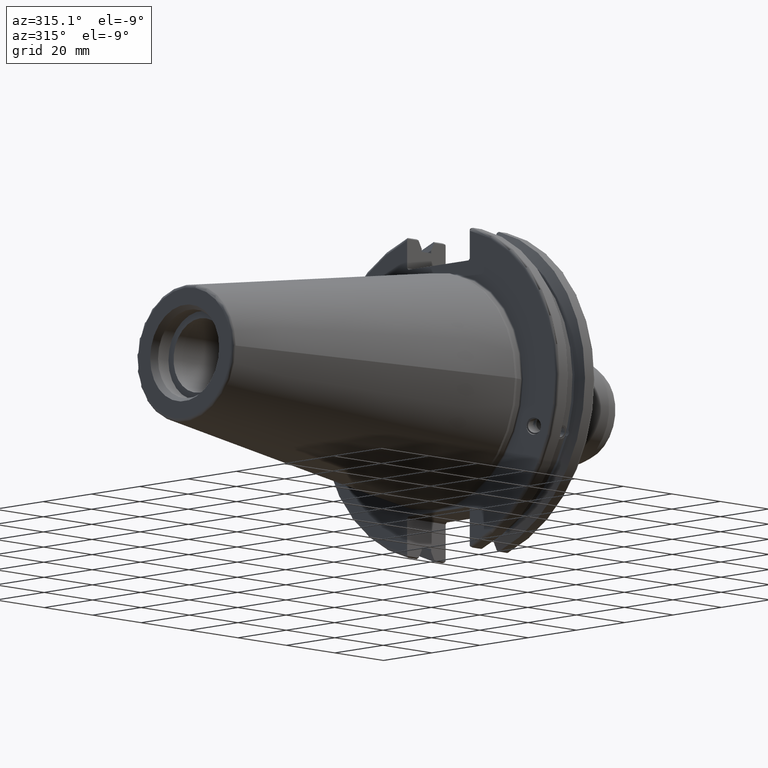
[diagram: clean part render]
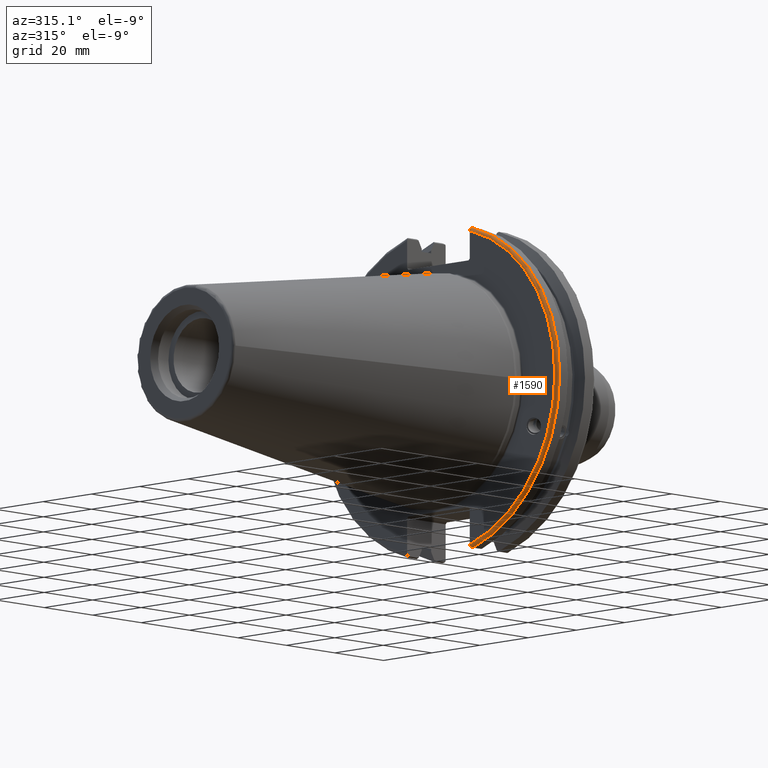
[diagram: same view with one face highlighted and labeled with its STEP entity id]
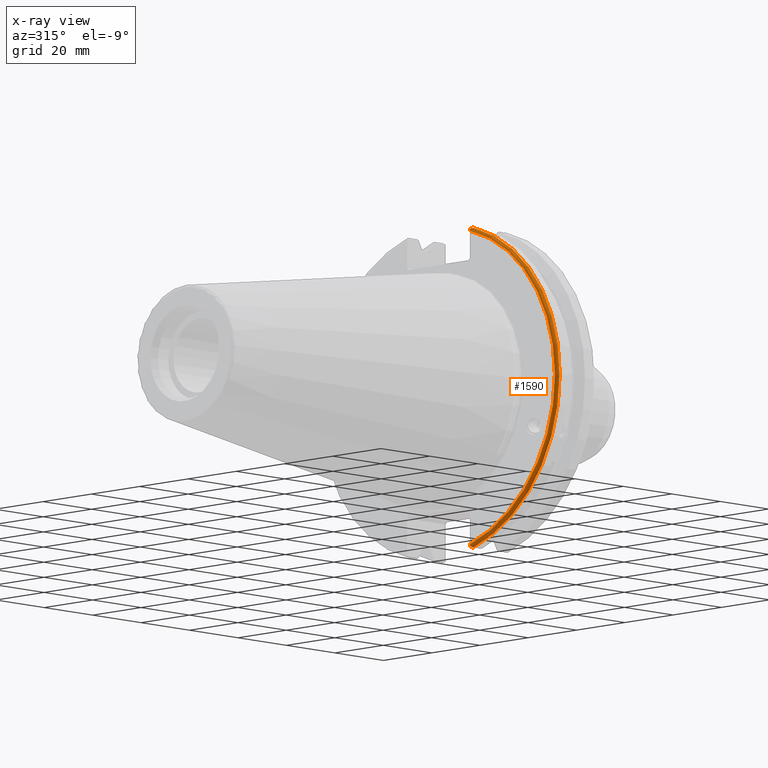
[diagram: x-ray of the same camera — body ghosted, the highlighted face saturated]
A machine part, auxiliary view. The second image highlights one B-rep face of the part: STEP entity #1590.
The next image is the same camera in x-ray: the body ghosted, the highlighted face saturated — about 0% of this face is hidden behind the body in this view.
In plain terms, the highlighted toroidal blend (fillet) surface has major radius 48.2125 mm and minor (blend) radius 1 mm.
Its self-contained STEP definition (entity closure, byte-faithful):
#38=TOROIDAL_SURFACE('',#1762,48.2125,1.);
#167=CIRCLE('',#1750,48.2125);
#172=CIRCLE('',#1763,49.2125);
#243=FACE_OUTER_BOUND('',#352,.T.);
#352=EDGE_LOOP('',(#1345,#1346,#1347,#1348,#1349,#1350));
#432=B_SPLINE_CURVE_WITH_KNOTS('',3,(#3197,#3198,#3199,#3200,#3201,#3202),
 .UNSPECIFIED.,.F.,.F.,(4,2,4),(0.0976892167532858,0.112000071948292,0.150881870548587),
 .UNSPECIFIED.);
#433=B_SPLINE_CURVE_WITH_KNOTS('',3,(#3223,#3224,#3225,#3226,#3227,#3228),
 .UNSPECIFIED.,.F.,.F.,(4,2,4),(0.452859340315922,0.491741138916218,0.506051994111223),
 .UNSPECIFIED.);
#434=B_SPLINE_CURVE_WITH_KNOTS('',3,(#3232,#3233,#3234,#3235,#3236,#3237,
#3238,#3239),.UNSPECIFIED.,.F.,.F.,(4,2,2,4),(-0.104075769062722,-0.0730268503455485,
-0.034363987365627,0.),.UNSPECIFIED.);
#435=B_SPLINE_CURVE_WITH_KNOTS('',3,(#3242,#3243,#3244,#3245,#3246,#3247,
#3248,#3249),.UNSPECIFIED.,.F.,.F.,(4,2,2,4),(0.,0.0343639873656262,0.073026850345548,
0.104075769062723),.UNSPECIFIED.);
#741=VERTEX_POINT('',#3075);
#742=VERTEX_POINT('',#3076);
#767=VERTEX_POINT('',#3196);
#773=VERTEX_POINT('',#3221);
#774=VERTEX_POINT('',#3231);
#775=VERTEX_POINT('',#3240);
#937=EDGE_CURVE('',#741,#742,#167,.T.);
#971=EDGE_CURVE('',#767,#741,#432,.T.);
#981=EDGE_CURVE('',#742,#773,#433,.T.);
#983=EDGE_CURVE('',#773,#774,#434,.T.);
#984=EDGE_CURVE('',#774,#775,#172,.T.);
#985=EDGE_CURVE('',#775,#767,#435,.T.);
#1345=ORIENTED_EDGE('',*,*,#983,.T.);
#1346=ORIENTED_EDGE('',*,*,#984,.T.);
#1347=ORIENTED_EDGE('',*,*,#985,.T.);
#1348=ORIENTED_EDGE('',*,*,#971,.T.);
#1349=ORIENTED_EDGE('',*,*,#937,.T.);
#1350=ORIENTED_EDGE('',*,*,#981,.T.);
#1590=ADVANCED_FACE('',(#243),#38,.T.);
#1750=AXIS2_PLACEMENT_3D('',#3077,#2069,#2070);
#1762=AXIS2_PLACEMENT_3D('',#3230,#2120,#2121);
#1763=AXIS2_PLACEMENT_3D('',#3241,#2122,#2123);
#2069=DIRECTION('center_axis',(1.,0.,0.));
#2070=DIRECTION('ref_axis',(0.,-1.,1.60812264967664E-16));
#2120=DIRECTION('center_axis',(1.,0.,0.));
#2121=DIRECTION('ref_axis',(0.,0.,-1.));
#2122=DIRECTION('center_axis',(-1.,0.,0.));
#2123=DIRECTION('ref_axis',(0.,-1.,1.60812264967664E-16));
#3075=CARTESIAN_POINT('',(3.175,-12.95,46.4407434937254));
#3076=CARTESIAN_POINT('',(3.175,-12.95,-46.4407434937254));
#3077=CARTESIAN_POINT('Origin',(3.175,0.,0.));
#3196=CARTESIAN_POINT('',(3.31949794294344,-12.95,46.9780755322918));
#3197=CARTESIAN_POINT('Ctrl Pts',(3.31949794294344,-12.95,46.9780755322918));
#3198=CARTESIAN_POINT('Ctrl Pts',(3.29341556483839,-12.95,46.9333752207329));
#3199=CARTESIAN_POINT('Ctrl Pts',(3.27115672912336,-12.95,46.887363294568));
#3200=CARTESIAN_POINT('Ctrl Pts',(3.20453530071253,-12.95,46.7230464903732));
#3201=CARTESIAN_POINT('Ctrl Pts',(3.175,-12.95,46.5703494890597));
#3202=CARTESIAN_POINT('Ctrl Pts',(3.175,-12.95,46.4407434937254));
#3221=CARTESIAN_POINT('',(3.31949794294343,-12.95,-46.9780755322917));
#3223=CARTESIAN_POINT('Ctrl Pts',(3.175,-12.95,-46.4407434937254));
#3224=CARTESIAN_POINT('Ctrl Pts',(3.175,-12.95,-46.5703494890597));
#3225=CARTESIAN_POINT('Ctrl Pts',(3.20453530071253,-12.95,-46.7230464903732));
#3226=CARTESIAN_POINT('Ctrl Pts',(3.27115672912336,-12.95,-46.887363294568));
#3227=CARTESIAN_POINT('Ctrl Pts',(3.29341556483838,-12.95,-46.9333752207329));
#3228=CARTESIAN_POINT('Ctrl Pts',(3.31949794294343,-12.95,-46.9780755322917));
#3230=CARTESIAN_POINT('Origin',(4.175,0.,0.));
#3231=CARTESIAN_POINT('',(4.175,-13.4317035994433,-47.3440544806494));
#3232=CARTESIAN_POINT('Ctrl Pts',(3.31949794294343,-12.95,-46.9780755322917));
#3233=CARTESIAN_POINT('Ctrl Pts',(3.36785032278753,-13.0300321736484,-47.0388807469102));
#3234=CARTESIAN_POINT('Ctrl Pts',(3.43235971798504,-13.1083611826073,-47.0983919657547));
#3235=CARTESIAN_POINT('Ctrl Pts',(3.58507512107923,-13.2478194810696,-47.2043467509586));
#3236=CARTESIAN_POINT('Ctrl Pts',(3.70638116490964,-13.3242014686233,-47.2623787015413));
#3237=CARTESIAN_POINT('Ctrl Pts',(3.92661103245834,-13.4067722493645,-47.3251126473446));
#3238=CARTESIAN_POINT('Ctrl Pts',(4.06045337544791,-13.4317035994434,-47.3440544806494));
#3239=CARTESIAN_POINT('Ctrl Pts',(4.175,-13.4317035994434,-47.3440544806494));
#3240=CARTESIAN_POINT('',(4.175,-13.4317035994433,47.3440544806494));
#3241=CARTESIAN_POINT('Origin',(4.175,0.,0.));
#3242=CARTESIAN_POINT('Ctrl Pts',(4.175,-13.4317035994433,47.3440544806494));
#3243=CARTESIAN_POINT('Ctrl Pts',(4.06045337544791,-13.4317035994433,47.3440544806494));
#3244=CARTESIAN_POINT('Ctrl Pts',(3.92661103245835,-13.4067722493645,47.3251126473446));
#3245=CARTESIAN_POINT('Ctrl Pts',(3.70638116490965,-13.3242014686233,47.2623787015413));
#3246=CARTESIAN_POINT('Ctrl Pts',(3.58507512107923,-13.2478194810695,47.2043467509586));
#3247=CARTESIAN_POINT('Ctrl Pts',(3.43235971798504,-13.1083611826073,47.0983919657547));
#3248=CARTESIAN_POINT('Ctrl Pts',(3.36785032278754,-13.0300321736484,47.0388807469102));
#3249=CARTESIAN_POINT('Ctrl Pts',(3.31949794294344,-12.95,46.9780755322918));